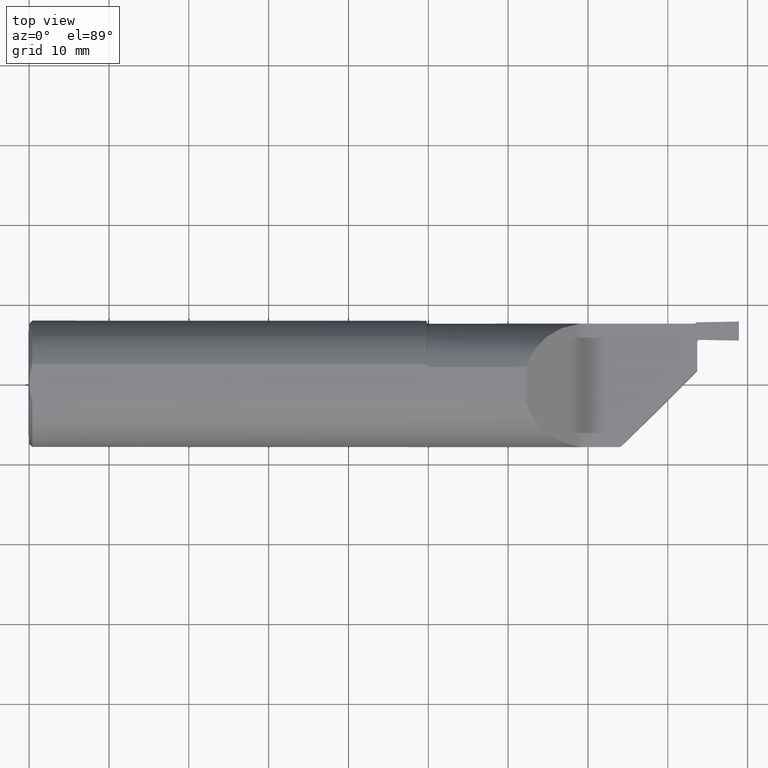
[diagram: clean part render]
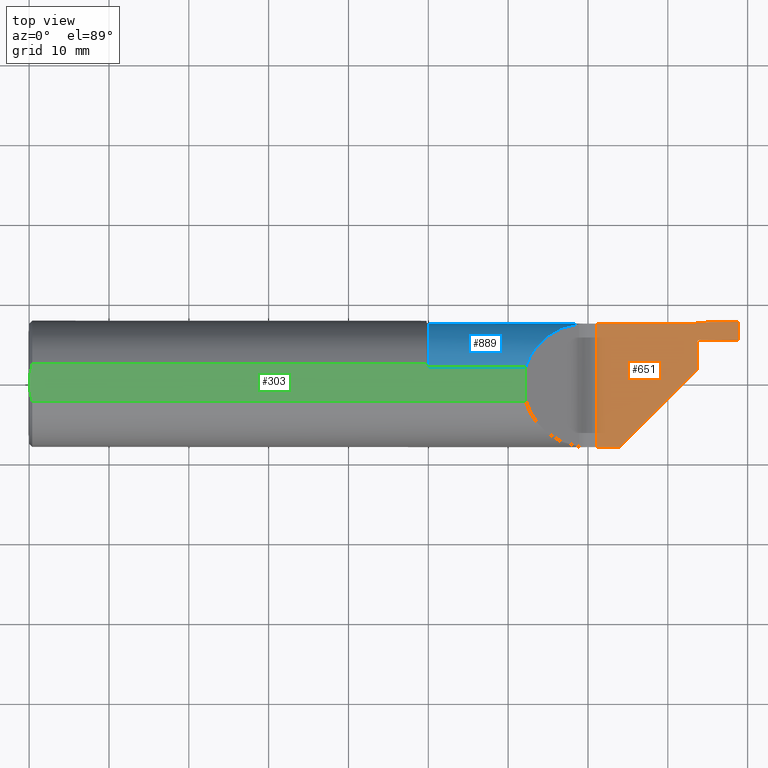
[diagram: same view with three faces highlighted in distinct colors, each labeled with its STEP entity id]
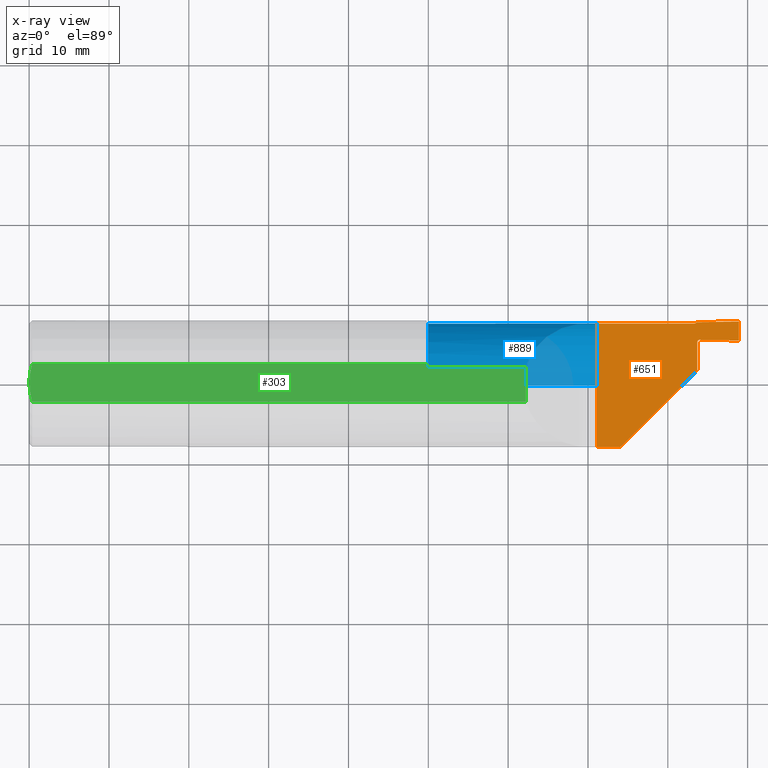
[diagram: x-ray of the same camera — body ghosted, the three highlighted faces saturated]
A machine part, top view with three faces highlighted in distinct colors.
The next image is the same camera in x-ray (body ghosted, the three faces saturated) — at least one of them is partly hidden behind the body in this view.
Their STEP definitions:

[orange] entity #651 — the highlighted planar face has unit normal (0, 0, -1).
#4 = ORIENTED_EDGE ( 'NONE', *, *, #230, .F. ) ;
#6 = EDGE_CURVE ( 'NONE', #345, #322, #250, .T. ) ;
#23 = VERTEX_POINT ( 'NONE', #243 ) ;
#24 = VECTOR ( 'NONE', #200, 39.37007874015748143 ) ;
#27 = DIRECTION ( 'NONE',  ( -1.000000000000000000, -0.000000000000000000, -0.000000000000000000 ) ) ;
#38 = VECTOR ( 'NONE', #192, 39.37007874015748143 ) ;
#51 = LINE ( 'NONE', #60, #24 ) ;
#54 = CIRCLE ( 'NONE', #558, 0.01000000000000016674 ) ;
#58 = CARTESIAN_POINT ( 'NONE',  ( 3.305174524064372843, 0.2167499296919060681, 0.000000000000000000 ) ) ;
#60 = CARTESIAN_POINT ( 'NONE',  ( 3.720053754966591519, 0.3111902909404173356, 1.707404996040164512E-17 ) ) ;
#63 = ORIENTED_EDGE ( 'NONE', *, *, #6, .T. ) ;
#69 = DIRECTION ( 'NONE',  ( 0.000000000000000000, 0.000000000000000000, 1.000000000000000000 ) ) ;
#90 = VECTOR ( 'NONE', #281, 39.37007874015748854 ) ;
#105 = VECTOR ( 'NONE', #27, 39.37007874015748143 ) ;
#106 = VECTOR ( 'NONE', #686, 39.37007874015748143 ) ;
#111 = ORIENTED_EDGE ( 'NONE', *, *, #312, .F. ) ;
#118 = PLANE ( 'NONE',  #433 ) ;
#137 = CARTESIAN_POINT ( 'NONE',  ( 3.294999999999999485, 0.06765000000000002955, 0.000000000000000000 ) ) ;
#144 = LINE ( 'NONE', #704, #105 ) ;
#148 = CARTESIAN_POINT ( 'NONE',  ( 3.294999999999999485, 0.2067514527403421509, 0.000000000000000000 ) ) ;
#152 = DIRECTION ( 'NONE',  ( 0.000000000000000000, -1.000000000000000000, 0.000000000000000000 ) ) ;
#167 = VERTEX_POINT ( 'NONE', #537 ) ;
#169 = CIRCLE ( 'NONE', #541, 0.007999999999999478015 ) ;
#176 = ORIENTED_EDGE ( 'NONE', *, *, #244, .F. ) ;
#180 = DIRECTION ( 'NONE',  ( 0.000000000000000000, 1.000000000000000000, 0.000000000000000000 ) ) ;
#190 = ORIENTED_EDGE ( 'NONE', *, *, #743, .F. ) ;
#192 = DIRECTION ( 'NONE',  ( 0.000000000000000000, -1.000000000000000000, 0.000000000000000000 ) ) ;
#197 = CARTESIAN_POINT ( 'NONE',  ( 2.750000000000000000, -0.4123500000000000498, 0.000000000000000000 ) ) ;
#199 = VERTEX_POINT ( 'NONE', #544 ) ;
#200 = DIRECTION ( 'NONE',  ( 0.9998476951563914916, 0.01745240643726934937, 0.000000000000000000 ) ) ;
#206 = FACE_OUTER_BOUND ( 'NONE', #384, .T. ) ;
#211 = VECTOR ( 'NONE', #152, 39.37007874015748143 ) ;
#216 = LINE ( 'NONE', #148, #211 ) ;
#224 = CARTESIAN_POINT ( 'NONE',  ( 1.960000000000000409, 0.2973492383597806654, 0.000000000000000000 ) ) ;
#226 = VECTOR ( 'NONE', #180, 39.37007874015748143 ) ;
#230 = EDGE_CURVE ( 'NONE', #345, #232, #678, .T. ) ;
#232 = VERTEX_POINT ( 'NONE', #474 ) ;
#243 = CARTESIAN_POINT ( 'NONE',  ( 2.799776695296631868, 0.2973492383597807764, -1.707404996040164512E-17 ) ) ;
#244 = EDGE_CURVE ( 'NONE', #232, #167, #54, .T. ) ;
#250 = LINE ( 'NONE', #583, #226 ) ;
#260 = LINE ( 'NONE', #876, #38 ) ;
#270 = CARTESIAN_POINT ( 'NONE',  ( 3.281999999999999584, 0.2973492383597809430, 0.000000000000000000 ) ) ;
#281 = DIRECTION ( 'NONE',  ( -0.9998476951563912696, 0.01745240643727496294, -0.000000000000000000 ) ) ;
#286 = CARTESIAN_POINT ( 'NONE',  ( 3.500000000000000000, 0.3073492383597807298, 9.134616728814879582E-16 ) ) ;
#287 = EDGE_CURVE ( 'NONE', #167, #539, #216, .T. ) ;
#293 = LINE ( 'NONE', #224, #415 ) ;
#312 = EDGE_CURVE ( 'NONE', #199, #650, #144, .T. ) ;
#322 = VERTEX_POINT ( 'NONE', #286 ) ;
#345 = VERTEX_POINT ( 'NONE', #784 ) ;
#347 = DIRECTION ( 'NONE',  ( -1.000000000000000000, 0.000000000000000000, 0.000000000000000000 ) ) ;
#378 = ORIENTED_EDGE ( 'NONE', *, *, #663, .F. ) ;
#384 = EDGE_LOOP ( 'NONE', ( #439, #190, #847, #111, #378, #399, #176, #4, #63, #475 ) ) ;
#399 = ORIENTED_EDGE ( 'NONE', *, *, #287, .F. ) ;
#415 = VECTOR ( 'NONE', #837, 39.37007874015748143 ) ;
#433 = AXIS2_PLACEMENT_3D ( 'NONE', #197, #477, #471 ) ;
#439 = ORIENTED_EDGE ( 'NONE', *, *, #564, .F. ) ;
#471 = DIRECTION ( 'NONE',  ( -1.000000000000000000, 0.000000000000000000, -0.000000000000000000 ) ) ;
#474 = CARTESIAN_POINT ( 'NONE',  ( 3.305174524064372843, 0.2167499296919060681, 5.335640612625514099E-18 ) ) ;
#475 = ORIENTED_EDGE ( 'NONE', *, *, #874, .F. ) ;
#477 = DIRECTION ( 'NONE',  ( 0.000000000000000000, 0.000000000000000000, -1.000000000000000000 ) ) ;
#529 = DIRECTION ( 'NONE',  ( -0.000000000000000000, -0.000000000000000000, 1.000000000000000000 ) ) ;
#537 = CARTESIAN_POINT ( 'NONE',  ( 3.294999999999999485, 0.2067514527403421509, 0.000000000000000000 ) ) ;
#539 = VERTEX_POINT ( 'NONE', #887 ) ;
#541 = AXIS2_PLACEMENT_3D ( 'NONE', #892, #529, #607 ) ;
#544 = CARTESIAN_POINT ( 'NONE',  ( 2.914999999999998703, -0.3123499999999999610, 0.000000000000000000 ) ) ;
#558 = AXIS2_PLACEMENT_3D ( 'NONE', #762, #69, #347 ) ;
#564 = EDGE_CURVE ( 'NONE', #609, #798, #169, .T. ) ;
#583 = CARTESIAN_POINT ( 'NONE',  ( 3.500000000000000000, -0.4123500000000000498, 0.000000000000000000 ) ) ;
#607 = DIRECTION ( 'NONE',  ( -1.000000000000000000, -2.134256245050344925E-14, 0.000000000000000000 ) ) ;
#609 = VERTEX_POINT ( 'NONE', #270 ) ;
#617 = EDGE_CURVE ( 'NONE', #23, #650, #260, .T. ) ;
#650 = VERTEX_POINT ( 'NONE', #899 ) ;
#651 = ADVANCED_FACE ( 'NONE', ( #206 ), #118, .F. ) ;
#663 = EDGE_CURVE ( 'NONE', #539, #199, #752, .T. ) ;
#678 = LINE ( 'NONE', #58, #90 ) ;
#686 = DIRECTION ( 'NONE',  ( -0.7071067811865483499, -0.7071067811865466846, 0.000000000000000000 ) ) ;
#704 = CARTESIAN_POINT ( 'NONE',  ( 0.000000000000000000, -0.3123499999999999610, 0.000000000000000000 ) ) ;
#743 = EDGE_CURVE ( 'NONE', #23, #609, #293, .T. ) ;
#752 = LINE ( 'NONE', #137, #106 ) ;
#762 = CARTESIAN_POINT ( 'NONE',  ( 3.304999999999999716, 0.2067514527403421509, 0.000000000000000000 ) ) ;
#784 = CARTESIAN_POINT ( 'NONE',  ( 3.500000000000000444, 0.2133492383597804520, 0.000000000000000000 ) ) ;
#798 = VERTEX_POINT ( 'NONE', #870 ) ;
#837 = DIRECTION ( 'NONE',  ( 1.000000000000000000, 0.000000000000000000, 0.000000000000000000 ) ) ;
#847 = ORIENTED_EDGE ( 'NONE', *, *, #617, .T. ) ;
#870 = CARTESIAN_POINT ( 'NONE',  ( 3.289824043542131538, 0.3036806033934613125, 4.774952767619148476E-16 ) ) ;
#874 = EDGE_CURVE ( 'NONE', #798, #322, #51, .T. ) ;
#876 = CARTESIAN_POINT ( 'NONE',  ( 2.799776695296631868, -0.4123500000000000498, 0.000000000000000000 ) ) ;
#887 = CARTESIAN_POINT ( 'NONE',  ( 3.294999999999999485, 0.06765000000000002955, 0.000000000000000000 ) ) ;
#892 = CARTESIAN_POINT ( 'NONE',  ( 3.281999999999999584, 0.3053492383597807280, 0.000000000000000000 ) ) ;
#899 = CARTESIAN_POINT ( 'NONE',  ( 2.799776695296631868, -0.3123499999999999610, 0.000000000000000000 ) ) ;

[blue] entity #889 — the highlighted cylindrical surface (partial cylindrical patch) has radius 7.9375 mm, axis along (-1, -0, -0).
#11 = CARTESIAN_POINT ( 'NONE',  ( 2.723503842258455432, 0.2963290950768751042, 0.02563397962624387738 ) ) ;
#22 =( BOUNDED_CURVE ( )  B_SPLINE_CURVE ( 3, ( #65, #623, #831, #133 ),
 .UNSPECIFIED., .F., .F. ) 
 B_SPLINE_CURVE_WITH_KNOTS ( ( 4, 4 ),
 ( 0.2195200598638573364, 0.8295564977839915421 ),
 .UNSPECIFIED. ) 
 CURVE ( )  GEOMETRIC_REPRESENTATION_ITEM ( )  RATIONAL_B_SPLINE_CURVE ( ( 1.000000000000000000, 0.9692276542533694306, 0.9692276542533694306, 1.000000000000000000 ) ) 
 REPRESENTATION_ITEM ( '' )  );
#23 = VERTEX_POINT ( 'NONE', #243 ) ;
#33 = CARTESIAN_POINT ( 'NONE',  ( 2.799776695296631868, 0.2973492383597807764, -1.707404996040164512E-17 ) ) ;
#52 = CIRCLE ( 'NONE', #484, 0.3125000000000003331 ) ;
#59 = ORIENTED_EDGE ( 'NONE', *, *, #218, .T. ) ;
#65 = CARTESIAN_POINT ( 'NONE',  ( 3.280359228772169455, 0.2898498865117347112, -0.06805038300324239842 ) ) ;
#72 = EDGE_CURVE ( 'NONE', #750, #258, #734, .T. ) ;
#83 = VERTEX_POINT ( 'NONE', #321 ) ;
#87 = CARTESIAN_POINT ( 'NONE',  ( 2.791523900243894740, 0.2973492383597807209, -2.254308158834279832E-17 ) ) ;
#93 = CARTESIAN_POINT ( 'NONE',  ( 2.783262096974776334, 0.2973522559233172102, 0.0008266951744985345579 ) ) ;
#99 = DIRECTION ( 'NONE',  ( -1.000000000000000000, -0.000000000000000000, -0.000000000000000000 ) ) ;
#100 = ORIENTED_EDGE ( 'NONE', *, *, #109, .T. ) ;
#103 = CARTESIAN_POINT ( 'NONE',  ( 3.242794509342262543, 0.01544450934226334303, -0.3116371563912295750 ) ) ;
#109 = EDGE_CURVE ( 'NONE', #83, #890, #22, .T. ) ;
#133 = CARTESIAN_POINT ( 'NONE',  ( 3.281999999999999584, 0.1958501658244087840, -0.2305099967660120264 ) ) ;
#154 = AXIS2_PLACEMENT_3D ( 'NONE', #713, #639, #280 ) ;
#170 = CARTESIAN_POINT ( 'NONE',  ( 1.968000000000000416, -0.01515076164021939703, 0.000000000000000000 ) ) ;
#193 = CARTESIAN_POINT ( 'NONE',  ( 3.280932724947501988, 0.2928103845563573282, -0.05320293549944549866 ) ) ;
#205 = CARTESIAN_POINT ( 'NONE',  ( 2.711388347648312713, 0.2951971671624064042, 0.03661165235168226811 ) ) ;
#214 = ORIENTED_EDGE ( 'NONE', *, *, #72, .T. ) ;
#218 = EDGE_CURVE ( 'NONE', #869, #857, #478, .T. ) ;
#224 = CARTESIAN_POINT ( 'NONE',  ( 1.960000000000000409, 0.2973492383597806654, 0.000000000000000000 ) ) ;
#228 = VERTEX_POINT ( 'NONE', #397 ) ;
#243 = CARTESIAN_POINT ( 'NONE',  ( 2.799776695296631868, 0.2973492383597807764, -1.707404996040164512E-17 ) ) ;
#248 = CARTESIAN_POINT ( 'NONE',  ( 2.711388347648312713, 0.2951971671624064042, 0.03661165235168226811 ) ) ;
#258 = VERTEX_POINT ( 'NONE', #463 ) ;
#259 = CARTESIAN_POINT ( 'NONE',  ( 3.222867780507597146, -0.004482219492402646395, -0.3123178384409560637 ) ) ;
#267 = ORIENTED_EDGE ( 'NONE', *, *, #513, .T. ) ;
#268 = FACE_OUTER_BOUND ( 'NONE', #693, .T. ) ;
#270 = CARTESIAN_POINT ( 'NONE',  ( 3.281999999999999584, 0.2973492383597809430, 0.000000000000000000 ) ) ;
#274 = EDGE_CURVE ( 'NONE', #228, #83, #748, .T. ) ;
#280 = DIRECTION ( 'NONE',  ( 0.000000000000000000, 0.000000000000000000, 1.000000000000000000 ) ) ;
#293 = LINE ( 'NONE', #224, #415 ) ;
#314 = CIRCLE ( 'NONE', #154, 0.3125000000000003331 ) ;
#321 = CARTESIAN_POINT ( 'NONE',  ( 3.280359228772169455, 0.2898498865117347112, -0.06805038300324239842 ) ) ;
#329 = CARTESIAN_POINT ( 'NONE',  ( 2.625000000000000000, -0.004482219491794909444, -0.3123178384409500685 ) ) ;
#333 = CARTESIAN_POINT ( 'NONE',  ( 3.281294126870847983, 0.2934321724897325789, -0.04946533108392788675 ) ) ;
#340 = ORIENTED_EDGE ( 'NONE', *, *, #871, .F. ) ;
#342 = AXIS2_PLACEMENT_3D ( 'NONE', #685, #809, #881 ) ;
#354 = ORIENTED_EDGE ( 'NONE', *, *, #811, .F. ) ;
#377 = ORIENTED_EDGE ( 'NONE', *, *, #274, .T. ) ;
#379 = B_SPLINE_CURVE_WITH_KNOTS ( 'NONE', 3,
 ( #489, #632, #11, #718, #659, #730, #667, #93, #87, #33 ),
 .UNSPECIFIED., .F., .F.,
 ( 4, 2, 2, 2, 4 ),
 ( 0.000000000000000000, 0.0006199328346996068641, 0.001239865669399213728, 0.001859798504098820592, 0.002479731338798427456 ),
 .UNSPECIFIED. ) ;
#381 = CARTESIAN_POINT ( 'NONE',  ( 3.262565381986556545, 0.03521538198655656260, -0.3090583107218931036 ) ) ;
#385 = DIRECTION ( 'NONE',  ( 0.000000000000000000, 0.000000000000000000, 1.000000000000000000 ) ) ;
#388 = DIRECTION ( 'NONE',  ( 1.000000000000000000, 0.000000000000000000, 0.000000000000000000 ) ) ;
#397 = CARTESIAN_POINT ( 'NONE',  ( 3.282000000000060869, 0.2939800508479052943, -0.04576451431438996464 ) ) ;
#403 = CARTESIAN_POINT ( 'NONE',  ( 3.280444307417091920, 0.2914292046428632044, -0.06065759792747587448 ) ) ;
#411 = CARTESIAN_POINT ( 'NONE',  ( 2.585200142108180721, 0.2803107822912631053, 0.1627998578918155581 ) ) ;
#415 = VECTOR ( 'NONE', #837, 39.37007874015748143 ) ;
#430 = ORIENTED_EDGE ( 'NONE', *, *, #487, .T. ) ;
#447 = VECTOR ( 'NONE', #827, 39.37007874015748143 ) ;
#450 = CARTESIAN_POINT ( 'NONE',  ( 3.281999999999999584, -0.01515076164021939703, 0.000000000000000000 ) ) ;
#463 = CARTESIAN_POINT ( 'NONE',  ( 2.449649999999997885, 0.07781981166122939331, 0.2983500000000000041 ) ) ;
#478 = LINE ( 'NONE', #329, #447 ) ;
#484 = AXIS2_PLACEMENT_3D ( 'NONE', #450, #99, #671 ) ;
#485 = CARTESIAN_POINT ( 'NONE',  ( 1.968000000000000416, 0.07781981166122896310, 0.2983500000000000041 ) ) ;
#487 = EDGE_CURVE ( 'NONE', #890, #850, #52, .T. ) ;
#489 = CARTESIAN_POINT ( 'NONE',  ( 2.711388347648312713, 0.2951971671624064042, 0.03661165235168226811 ) ) ;
#500 = ORIENTED_EDGE ( 'NONE', *, *, #769, .T. ) ;
#513 = EDGE_CURVE ( 'NONE', #850, #869, #610, .T. ) ;
#515 = CARTESIAN_POINT ( 'NONE',  ( 3.281999999999999584, 0.05465000000000021230, -0.3046048319945784955 ) ) ;
#525 = CARTESIAN_POINT ( 'NONE',  ( 1.960000000000000409, 0.07781981166122950433, 0.2983500000000000041 ) ) ;
#554 = VECTOR ( 'NONE', #388, 39.37007874015748143 ) ;
#574 = DIRECTION ( 'NONE',  ( -1.000000000000000000, -0.000000000000000000, -0.000000000000000000 ) ) ;
#608 = CARTESIAN_POINT ( 'NONE',  ( 3.280344871733890333, 0.2906724006838639074, -0.06436388860685339497 ) ) ;
#609 = VERTEX_POINT ( 'NONE', #270 ) ;
#610 =( BOUNDED_CURVE ( )  B_SPLINE_CURVE ( 3, ( #515, #381, #103, #661 ),
 .UNSPECIFIED., .F., .T. ) 
 B_SPLINE_CURVE_WITH_KNOTS ( ( 4, 4 ),
 ( 4.487126275864073754, 4.678243010498487564 ),
 .UNSPECIFIED. ) 
 CURVE ( )  GEOMETRIC_REPRESENTATION_ITEM ( )  RATIONAL_B_SPLINE_CURVE ( ( 1.000000000000000000, 0.9969585149540760582, 0.9969585149540760582, 1.000000000000000000 ) ) 
 REPRESENTATION_ITEM ( '' )  );
#623 = CARTESIAN_POINT ( 'NONE',  ( 3.280604589798973958, 0.2757931627004228670, -0.1310523777626084463 ) ) ;
#632 = CARTESIAN_POINT ( 'NONE',  ( 2.717205560604044390, 0.2958834220351636568, 0.03079443939595079630 ) ) ;
#638 =( BOUNDED_CURVE ( )  B_SPLINE_CURVE ( 3, ( #205, #411, #824, #755 ),
 .UNSPECIFIED., .F., .F. ) 
 B_SPLINE_CURVE_WITH_KNOTS ( ( 4, 4 ),
 ( 4.829815950483568265, 5.981106177898001697 ),
 .UNSPECIFIED. ) 
 CURVE ( )  GEOMETRIC_REPRESENTATION_ITEM ( )  RATIONAL_B_SPLINE_CURVE ( ( 1.000000000000000000, 0.8925608616953477625, 0.8925608616953477625, 1.000000000000000000 ) ) 
 REPRESENTATION_ITEM ( '' )  );
#639 = DIRECTION ( 'NONE',  ( -1.000000000000000000, -0.000000000000000000, -0.000000000000000000 ) ) ;
#655 = CARTESIAN_POINT ( 'NONE',  ( 1.968000000000000416, -0.004482219491799574983, -0.3123178384409500685 ) ) ;
#659 = CARTESIAN_POINT ( 'NONE',  ( 2.744331949518403757, 0.2971080177065931194, 0.01267066154421023563 ) ) ;
#661 = CARTESIAN_POINT ( 'NONE',  ( 3.222867780507597146, -0.004482219492402646395, -0.3123178384409560637 ) ) ;
#662 = CIRCLE ( 'NONE', #733, 0.3125000000000000000 ) ;
#667 = CARTESIAN_POINT ( 'NONE',  ( 2.767240569818964158, 0.2973273312837141913, 0.004032474903713762111 ) ) ;
#670 = ORIENTED_EDGE ( 'NONE', *, *, #738, .T. ) ;
#671 = DIRECTION ( 'NONE',  ( 0.000000000000000000, 0.000000000000000000, 1.000000000000000000 ) ) ;
#685 = CARTESIAN_POINT ( 'NONE',  ( 1.960000000000000409, -0.01515076164021939703, 0.000000000000000000 ) ) ;
#693 = EDGE_LOOP ( 'NONE', ( #214, #340, #500, #879, #670, #377, #100, #430, #267, #59, #354 ) ) ;
#713 = CARTESIAN_POINT ( 'NONE',  ( 3.281999999999999584, -0.01515076164021939703, 0.000000000000000000 ) ) ;
#718 = CARTESIAN_POINT ( 'NONE',  ( 2.737023584286429223, 0.2969416066437379764, 0.01658781814739456600 ) ) ;
#721 = CARTESIAN_POINT ( 'NONE',  ( 3.281999999999999584, 0.05465000000000021230, -0.3046048319945784955 ) ) ;
#730 = CARTESIAN_POINT ( 'NONE',  ( 2.759453897954011747, 0.2972994535838715535, 0.006399527291019162234 ) ) ;
#733 = AXIS2_PLACEMENT_3D ( 'NONE', #170, #574, #385 ) ;
#734 = LINE ( 'NONE', #525, #554 ) ;
#736 = CARTESIAN_POINT ( 'NONE',  ( 3.281999999999999584, 0.1958501658244087840, -0.2305099967660120264 ) ) ;
#738 = EDGE_CURVE ( 'NONE', #609, #228, #314, .T. ) ;
#743 = EDGE_CURVE ( 'NONE', #23, #609, #293, .T. ) ;
#748 = B_SPLINE_CURVE_WITH_KNOTS ( 'NONE', 3,
 ( #817, #333, #193, #403, #608, #888 ),
 .UNSPECIFIED., .F., .F.,
 ( 4, 2, 4 ),
 ( 1.074036166439442298E-06, 0.0002905441238931933952, 0.0005800142116199472671 ),
 .UNSPECIFIED. ) ;
#750 = VERTEX_POINT ( 'NONE', #485 ) ;
#751 = CYLINDRICAL_SURFACE ( 'NONE', #342, 0.3125000000000001665 ) ;
#755 = CARTESIAN_POINT ( 'NONE',  ( 2.449649999999997885, 0.07781981166122939331, 0.2983500000000000041 ) ) ;
#769 = EDGE_CURVE ( 'NONE', #799, #23, #379, .T. ) ;
#799 = VERTEX_POINT ( 'NONE', #248 ) ;
#809 = DIRECTION ( 'NONE',  ( -1.000000000000000000, -0.000000000000000000, -0.000000000000000000 ) ) ;
#811 = EDGE_CURVE ( 'NONE', #750, #857, #662, .T. ) ;
#817 = CARTESIAN_POINT ( 'NONE',  ( 3.282000000000060869, 0.2939800508479052943, -0.04576451431438996464 ) ) ;
#824 = CARTESIAN_POINT ( 'NONE',  ( 2.487452056093010455, 0.1991296308314491337, 0.2605479439069870451 ) ) ;
#827 = DIRECTION ( 'NONE',  ( -1.000000000000000000, -0.000000000000000000, -0.000000000000000000 ) ) ;
#831 = CARTESIAN_POINT ( 'NONE',  ( 3.281168878013625889, 0.2434651125342875144, -0.1869249112689970738 ) ) ;
#837 = DIRECTION ( 'NONE',  ( 1.000000000000000000, 0.000000000000000000, 0.000000000000000000 ) ) ;
#850 = VERTEX_POINT ( 'NONE', #721 ) ;
#857 = VERTEX_POINT ( 'NONE', #655 ) ;
#869 = VERTEX_POINT ( 'NONE', #259 ) ;
#871 = EDGE_CURVE ( 'NONE', #799, #258, #638, .T. ) ;
#879 = ORIENTED_EDGE ( 'NONE', *, *, #743, .T. ) ;
#881 = DIRECTION ( 'NONE',  ( 0.000000000000000000, 0.000000000000000000, 1.000000000000000000 ) ) ;
#888 = CARTESIAN_POINT ( 'NONE',  ( 3.280359228772169455, 0.2898498865117347112, -0.06805038300324239842 ) ) ;
#889 = ADVANCED_FACE ( 'NONE', ( #268 ), #751, .T. ) ;
#890 = VERTEX_POINT ( 'NONE', #736 ) ;

[green] entity #303 — the highlighted planar face has unit normal (0, 0, -1).
#26 = CARTESIAN_POINT ( 'NONE',  ( 0.01055831307742283523, -0.07746097584156608207, 0.2983500000000000596 ) ) ;
#31 = LINE ( 'NONE', #184, #875 ) ;
#56 = CARTESIAN_POINT ( 'NONE',  ( 0.001000000000000201249, 5.061904484354354924E-17, 0.2983500000000000041 ) ) ;
#72 = EDGE_CURVE ( 'NONE', #750, #258, #734, .T. ) ;
#80 = CARTESIAN_POINT ( 'NONE',  ( 0.001000000000000201249, 5.061904484354354924E-17, 0.2983500000000000041 ) ) ;
#81 = CARTESIAN_POINT ( 'NONE',  ( 1.960728097748990928, 0.09246512856206982878, 0.2983499999999997820 ) ) ;
#85 = CARTESIAN_POINT ( 'NONE',  ( 1.961795050004579100, 0.08682163519343566449, 0.2983500000000000041 ) ) ;
#94 = CARTESIAN_POINT ( 'NONE',  ( 1.966597096246990306, 0.07816854141863475991, 0.2983499999999999486 ) ) ;
#151 = CARTESIAN_POINT ( 'NONE',  ( 0.001000000000000263482, 0.01569413818093103735, 0.2983500000000000596 ) ) ;
#164 = ORIENTED_EDGE ( 'NONE', *, *, #72, .F. ) ;
#171 = DIRECTION ( 'NONE',  ( -0.000000000000000000, 1.000000000000000000, 0.000000000000000000 ) ) ;
#177 = CARTESIAN_POINT ( 'NONE',  ( 0.007005465354576248353, -0.06206222481488821857, 0.2983500000000000041 ) ) ;
#184 = CARTESIAN_POINT ( 'NONE',  ( 2.449649999999997885, 0.09246512856206932918, 0.2983500000000000041 ) ) ;
#220 = CARTESIAN_POINT ( 'NONE',  ( 0.007054879162604068242, 0.06230152177692626497, 0.2983500000000000596 ) ) ;
#225 = CARTESIAN_POINT ( 'NONE',  ( 0.000000000000000000, -0.4123500000000000498, 0.2983500000000000041 ) ) ;
#258 = VERTEX_POINT ( 'NONE', #463 ) ;
#263 = B_SPLINE_CURVE_WITH_KNOTS ( 'NONE', 3,
 ( #803, #307, #380, #177, #26, #863 ),
 .UNSPECIFIED., .F., .F.,
 ( 4, 2, 4 ),
 ( 0.009681531988344141068, 0.01085839497132952414, 0.01203525795431490721 ),
 .UNSPECIFIED. ) ;
#289 = ORIENTED_EDGE ( 'NONE', *, *, #479, .F. ) ;
#303 = ADVANCED_FACE ( 'NONE', ( #437 ), #767, .F. ) ;
#305 = CARTESIAN_POINT ( 'NONE',  ( 1.965045845949033199, 0.07966238764679994810, 0.2983500000000000596 ) ) ;
#307 = CARTESIAN_POINT ( 'NONE',  ( 0.001000000000000257410, -0.01567344482694200958, 0.2983500000000000041 ) ) ;
#308 = CARTESIAN_POINT ( 'NONE',  ( 0.000000000000000000, 0.09246512856206932918, 0.2983500000000000041 ) ) ;
#332 = DIRECTION ( 'NONE',  ( -1.000000000000000000, -0.000000000000000000, -0.000000000000000000 ) ) ;
#361 = CARTESIAN_POINT ( 'NONE',  ( 1.961168654006056222, 0.08963362299606143779, 0.2983500000000000596 ) ) ;
#369 = CARTESIAN_POINT ( 'NONE',  ( 1.963855792650271992, 0.08146448514599555213, 0.2983500000000000596 ) ) ;
#371 = ORIENTED_EDGE ( 'NONE', *, *, #470, .T. ) ;
#380 = CARTESIAN_POINT ( 'NONE',  ( 0.002241371057115561661, -0.03121634298977672001, 0.2983500000000000596 ) ) ;
#387 = CARTESIAN_POINT ( 'NONE',  ( 1.965498212798423294, 0.07909074338581854879, 0.2983499999999999486 ) ) ;
#388 = DIRECTION ( 'NONE',  ( 1.000000000000000000, 0.000000000000000000, 0.000000000000000000 ) ) ;
#390 = ORIENTED_EDGE ( 'NONE', *, *, #807, .T. ) ;
#421 = EDGE_CURVE ( 'NONE', #636, #750, #427, .T. ) ;
#424 = ORIENTED_EDGE ( 'NONE', *, *, #603, .F. ) ;
#427 = B_SPLINE_CURVE_WITH_KNOTS ( 'NONE', 3,
 ( #81, #361, #85, #714, #369, #305, #387, #94, #593, #506 ),
 .UNSPECIFIED., .F., .F.,
 ( 4, 2, 2, 2, 4 ),
 ( 0.002052484508306465314, 0.002269510432392931112, 0.002378023394436168132, 0.002432279875457780786, 0.002486536356479393875 ),
 .UNSPECIFIED. ) ;
#437 = FACE_OUTER_BOUND ( 'NONE', #469, .T. ) ;
#441 = CARTESIAN_POINT ( 'NONE',  ( 0.01500000000000059099, 0.09246512856206932918, 0.2983500000000000041 ) ) ;
#459 = LINE ( 'NONE', #308, #498 ) ;
#463 = CARTESIAN_POINT ( 'NONE',  ( 2.449649999999997885, 0.07781981166122939331, 0.2983500000000000041 ) ) ;
#469 = EDGE_LOOP ( 'NONE', ( #164, #708, #289, #754, #390, #424, #371 ) ) ;
#470 = EDGE_CURVE ( 'NONE', #880, #258, #31, .T. ) ;
#479 = EDGE_CURVE ( 'NONE', #843, #636, #459, .T. ) ;
#485 = CARTESIAN_POINT ( 'NONE',  ( 1.968000000000000416, 0.07781981166122896310, 0.2983500000000000041 ) ) ;
#496 = AXIS2_PLACEMENT_3D ( 'NONE', #225, #710, #577 ) ;
#498 = VECTOR ( 'NONE', #801, 39.37007874015748143 ) ;
#505 = CARTESIAN_POINT ( 'NONE',  ( 0.01500000000000059099, 0.09246512856206932918, 0.2983500000000000041 ) ) ;
#506 = CARTESIAN_POINT ( 'NONE',  ( 1.968000000000000416, 0.07781981166122896310, 0.2983500000000000041 ) ) ;
#522 = CARTESIAN_POINT ( 'NONE',  ( 0.01499999999999581182, -0.09246512856207692033, 0.2983500000000000041 ) ) ;
#525 = CARTESIAN_POINT ( 'NONE',  ( 1.960000000000000409, 0.07781981166122950433, 0.2983500000000000041 ) ) ;
#536 = CARTESIAN_POINT ( 'NONE',  ( 1.960728097748990928, 0.09246512856206982878, 0.2983499999999997820 ) ) ;
#546 = CARTESIAN_POINT ( 'NONE',  ( 2.449649999999997885, -0.09246512856206932918, 0.2983500000000000041 ) ) ;
#554 = VECTOR ( 'NONE', #388, 39.37007874015748143 ) ;
#573 = VERTEX_POINT ( 'NONE', #56 ) ;
#577 = DIRECTION ( 'NONE',  ( -1.000000000000000000, 0.000000000000000000, -0.000000000000000000 ) ) ;
#593 = CARTESIAN_POINT ( 'NONE',  ( 1.967283820287247798, 0.07781981166123029536, 0.2983500000000000596 ) ) ;
#602 = CARTESIAN_POINT ( 'NONE',  ( 0.000000000000000000, -0.09246512856206932918, 0.2983500000000000041 ) ) ;
#603 = EDGE_CURVE ( 'NONE', #880, #840, #682, .T. ) ;
#630 = B_SPLINE_CURVE_WITH_KNOTS ( 'NONE', 3,
 ( #441, #841, #220, #774, #151, #80 ),
 .UNSPECIFIED., .F., .F.,
 ( 4, 2, 4 ),
 ( 0.007324698442313951237, 0.008503115215329046586, 0.009681531988344141068 ),
 .UNSPECIFIED. ) ;
#636 = VERTEX_POINT ( 'NONE', #536 ) ;
#679 = VECTOR ( 'NONE', #332, 39.37007874015748143 ) ;
#682 = LINE ( 'NONE', #602, #679 ) ;
#708 = ORIENTED_EDGE ( 'NONE', *, *, #421, .F. ) ;
#710 = DIRECTION ( 'NONE',  ( 0.000000000000000000, 0.000000000000000000, -1.000000000000000000 ) ) ;
#714 = CARTESIAN_POINT ( 'NONE',  ( 1.963277178917939070, 0.08278396844916338648, 0.2983500000000000596 ) ) ;
#716 = EDGE_CURVE ( 'NONE', #843, #573, #630, .T. ) ;
#734 = LINE ( 'NONE', #525, #554 ) ;
#750 = VERTEX_POINT ( 'NONE', #485 ) ;
#754 = ORIENTED_EDGE ( 'NONE', *, *, #716, .T. ) ;
#767 = PLANE ( 'NONE',  #496 ) ;
#774 = CARTESIAN_POINT ( 'NONE',  ( 0.002268765941513705385, 0.03147306883729043131, 0.2983500000000000041 ) ) ;
#801 = DIRECTION ( 'NONE',  ( 1.000000000000000000, 0.000000000000000000, 0.000000000000000000 ) ) ;
#803 = CARTESIAN_POINT ( 'NONE',  ( 0.001000000000000201249, 5.061904484354354924E-17, 0.2983500000000000041 ) ) ;
#807 = EDGE_CURVE ( 'NONE', #573, #840, #263, .T. ) ;
#840 = VERTEX_POINT ( 'NONE', #522 ) ;
#841 = CARTESIAN_POINT ( 'NONE',  ( 0.01056418794333125952, 0.07748082131622367752, 0.2983500000000000041 ) ) ;
#843 = VERTEX_POINT ( 'NONE', #505 ) ;
#863 = CARTESIAN_POINT ( 'NONE',  ( 0.01499999999999581182, -0.09246512856207692033, 0.2983500000000000041 ) ) ;
#875 = VECTOR ( 'NONE', #171, 39.37007874015748143 ) ;
#880 = VERTEX_POINT ( 'NONE', #546 ) ;